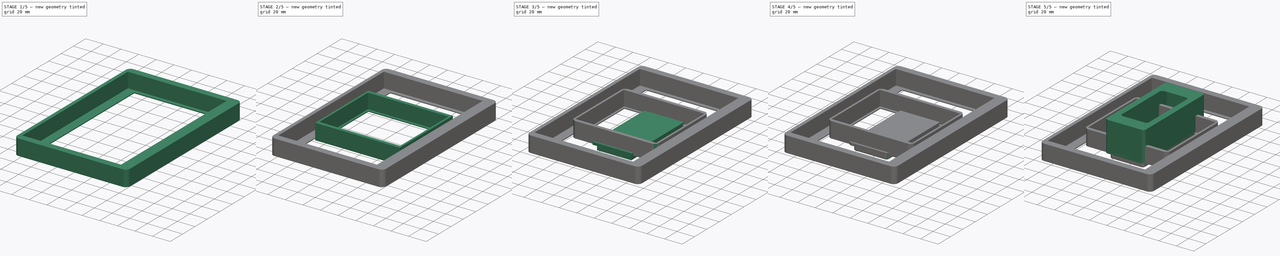
[diagram: build sequence overview — one tinted view per stage of 5, left to right]
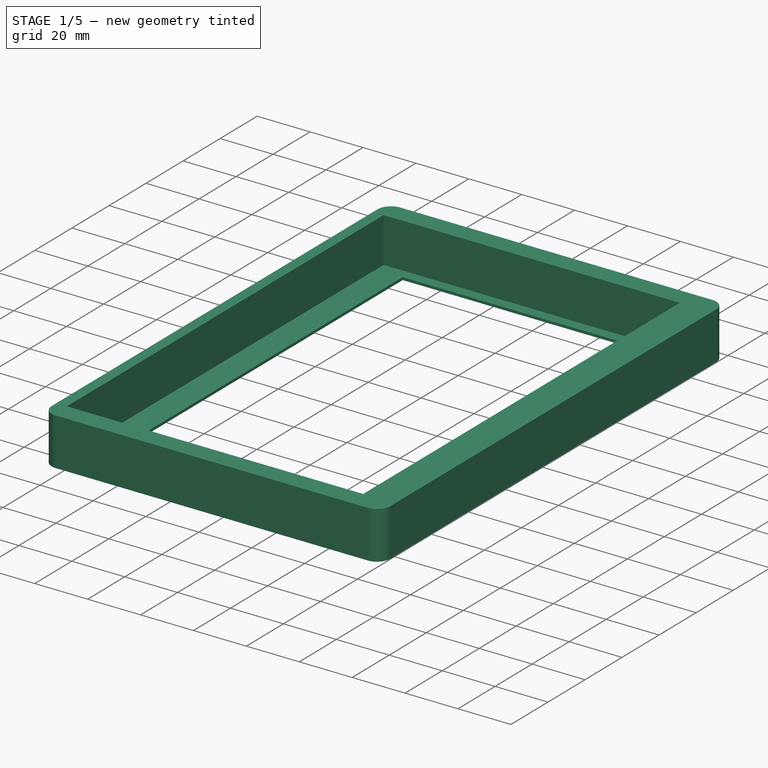
[diagram: stage 1 of 5 — iso view after this stage's code; geometry added in this stage tinted green]
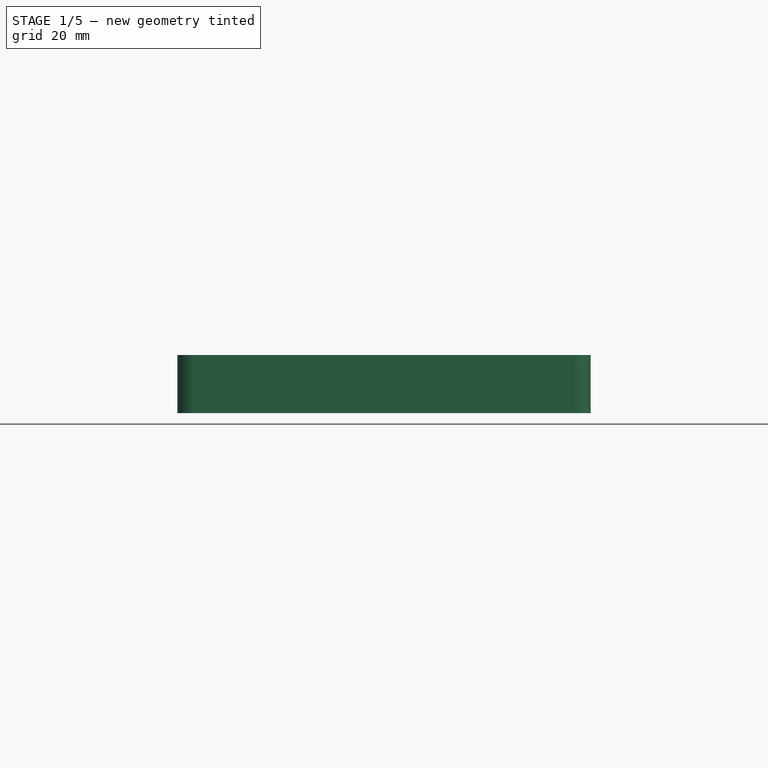
[diagram: stage 1 of 5 — front view after this stage's code; geometry added in this stage tinted green]
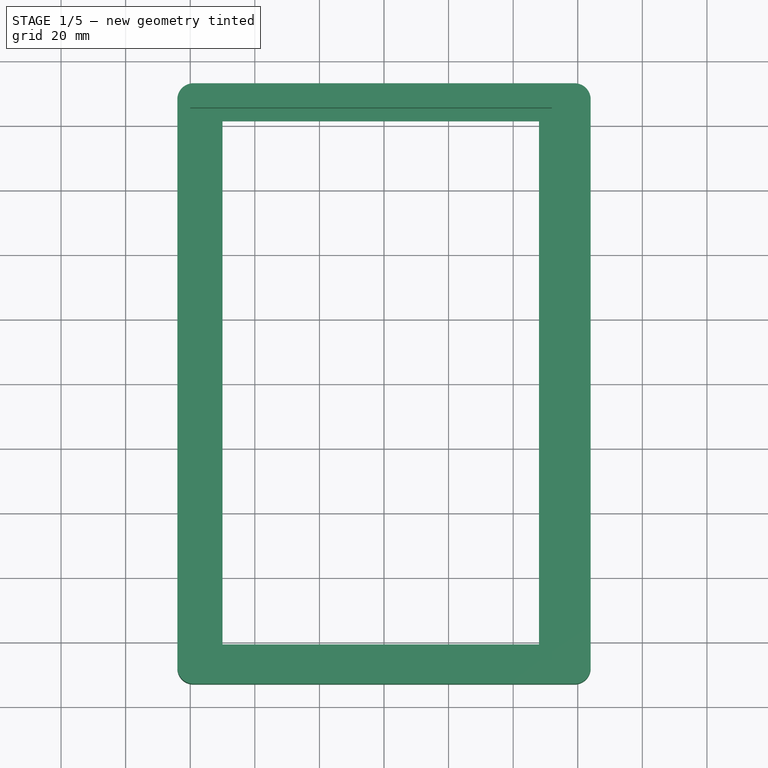
[diagram: stage 1 of 5 — top view after this stage's code; geometry added in this stage tinted green]
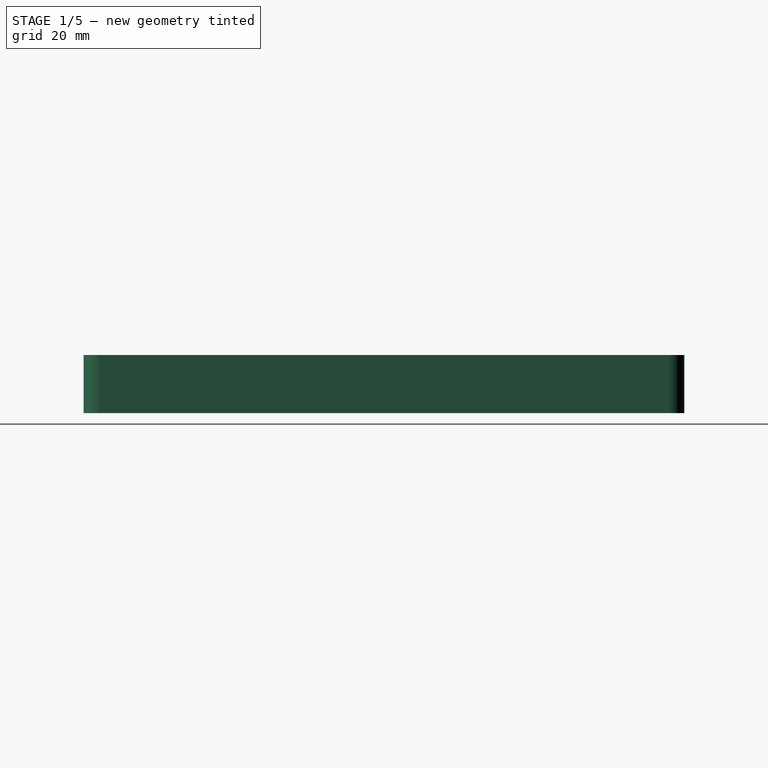
[diagram: stage 1 of 5 — right view after this stage's code; geometry added in this stage tinted green]
FCSTD DOCUMENT  (FreeCAD 0.21R33668 +26 (Git))
Label: case
License: Creative Commons Attribution
LicenseURL: http://creativecommons.org/licenses/by/4.0/
objects: Sketcher::SketchObject×12, PartDesign::Pocket×7, PartDesign::Fillet×7, PartDesign::Pad×5, PartDesign::Body×4, App::Part×1
note: 54 computed .brp shape members not serialized (recipe doc carries the construction recipe); baked Part::Feature solids carry a one-line shape summary decoded from their .brp

FEATURE [PartDesign::Body] Body002  label="screen_panel"
  Group = -> [Sketch007,Pad003,Sketch008,Pocket003,Sketch009,Pocket004,Fillet004]
  Origin = -> Origin003
  Tip = -> Fillet004
FEATURE [App::Part] Part  label="420Screeen"
  Group = -> [Body002]
  Origin = -> Origin002
FEATURE [Sketcher::SketchObject] Sketch010
  FullyConstrained = true
  MapMode = 5
  Support = -> [XY_Plane004]
  sketch-geometry (4):
    g0: LineSegment StartX=-64 StartY=93 StartZ=0 EndX=64 EndY=93 EndZ=0
    g1: LineSegment StartX=64 StartY=93 StartZ=0 EndX=64 EndY=-93 EndZ=0
    g2: LineSegment StartX=64 StartY=-93 StartZ=0 EndX=-64 EndY=-93 EndZ=0
    g3: LineSegment StartX=-64 StartY=-93 StartZ=0 EndX=-64 EndY=93 EndZ=0
  constraints (10):
    c: Coincident(g0,g1)
    c: Coincident(g1,g2)
    c: Coincident(g2,g3)
    c: Coincident(g3,g0)
    c: Horizontal(g2)
    c: Vertical(g1)
    c: DistanceX(g0,g0) = 128
    c: DistanceY(g1,g0) = 186
    c: Symmetric(g0,g0,g-2)
    c: Symmetric(g0,g2,g-1)
FEATURE [PartDesign::Pad] Pad004
  Direction = (0,0,1)
  Length = 18
  Length2 = 10
  Profile = -> Sketch010
  ReferenceAxis = -> Sketch010 [N_Axis]
  Type = 0
FEATURE [Sketcher::SketchObject] Sketch011
  ExternalGeometry = -> [Pad004]
  FullyConstrained = false
  MapMode = 5
  Placement = pos=(0,0,18) rot=(0,0,1;0rad)
  Support = -> [Pad004]
  expr: Constraints[9] = 112 / 2 + 4
  sketch-geometry (4):
    g0: LineSegment StartX=-60 StartY=85.5 StartZ=0 EndX=52 EndY=85.5 EndZ=0
    g1: LineSegment StartX=52 StartY=85.5 StartZ=0 EndX=52 EndY=-85.5 EndZ=0
    g2: LineSegment StartX=52 StartY=-85.5 StartZ=0 EndX=-60 EndY=-85.5 EndZ=0
    g3: LineSegment StartX=-60 StartY=-85.5 StartZ=0 EndX=-60 EndY=85.5 EndZ=0
  constraints (10):
    c: Coincident(g0,g1)
    c: Coincident(g1,g2)
    c: Coincident(g2,g3)
    c: Coincident(g3,g0)
    c: Horizontal(g2)
    c: Vertical(g1)
    c: DistanceX(g0,g0) = 112
    c: DistanceY(g2,g0) = 171
    c: Symmetric(g0,g2,g-1)
    c: DistanceX(g0,g-1) = 60
FEATURE [PartDesign::Pocket] Pocket005
  BaseFeature = -> Pad004
  Direction = (0,0,-1)
  Length = 17
  Length2 = 5
  Profile = -> Sketch011
  ReferenceAxis = -> Sketch011 [N_Axis]
  Type = 0
FEATURE [Sketcher::SketchObject] Sketch012
  ExternalGeometry = -> [Pocket005]
  FullyConstrained = false
  MapMode = 5
  Placement = pos=(0,0,1) rot=(0,0,1;0rad)
  Support = -> [Pocket005]
  sketch-geometry (4):
    g0: LineSegment StartX=-50 StartY=81.5 StartZ=0 EndX=48 EndY=81.5 EndZ=0
    g1: LineSegment StartX=48 StartY=81.5 StartZ=0 EndX=48 EndY=-80.5 EndZ=0
    g2: LineSegment StartX=48 StartY=-80.5 StartZ=0 EndX=-50 EndY=-80.5 EndZ=0
    g3: LineSegment StartX=-50 StartY=-80.5 StartZ=0 EndX=-50 EndY=81.5 EndZ=0
  constraints (11):
    c: Coincident(g0,g1)
    c: Coincident(g1,g2)
    c: Coincident(g2,g3)
    c: Coincident(g3,g0)
    c: Horizontal(g2)
    c: Vertical(g1)
    c: Vertical(g3)
    c: DistanceX(g0,g0) = 98
    c: DistanceY(g2,g0) = 162
    c: DistanceY(g0,g-4) = 4
    c: DistanceX(g-5,g0) = 10
FEATURE [PartDesign::Pocket] Pocket006
  BaseFeature = -> Pocket005
  Direction = (0,0,-1)
  Length = 5
  Length2 = 5
  Profile = -> Sketch012
  ReferenceAxis = -> Sketch012 [N_Axis]
  Type = 1
FEATURE [PartDesign::Fillet] Fillet005
  Base = -> Pocket006 [Edge5,Edge1,Edge2,Edge8]
  BaseFeature = -> Pocket006
  Radius = 5
  SupportTransform = false
  UseAllEdges = false
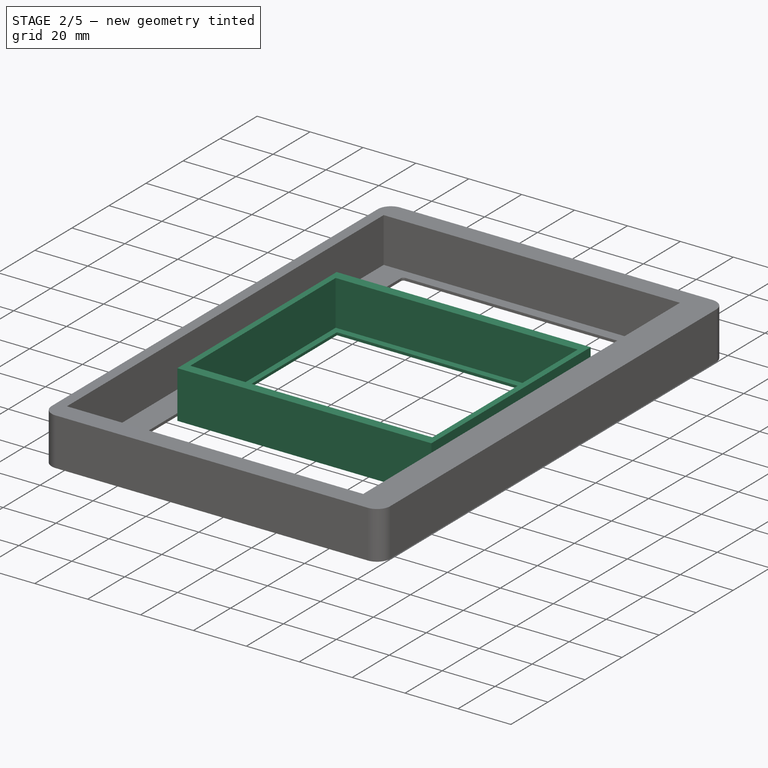
[diagram: stage 2 of 5 — iso view after this stage's code; geometry added in this stage tinted green]
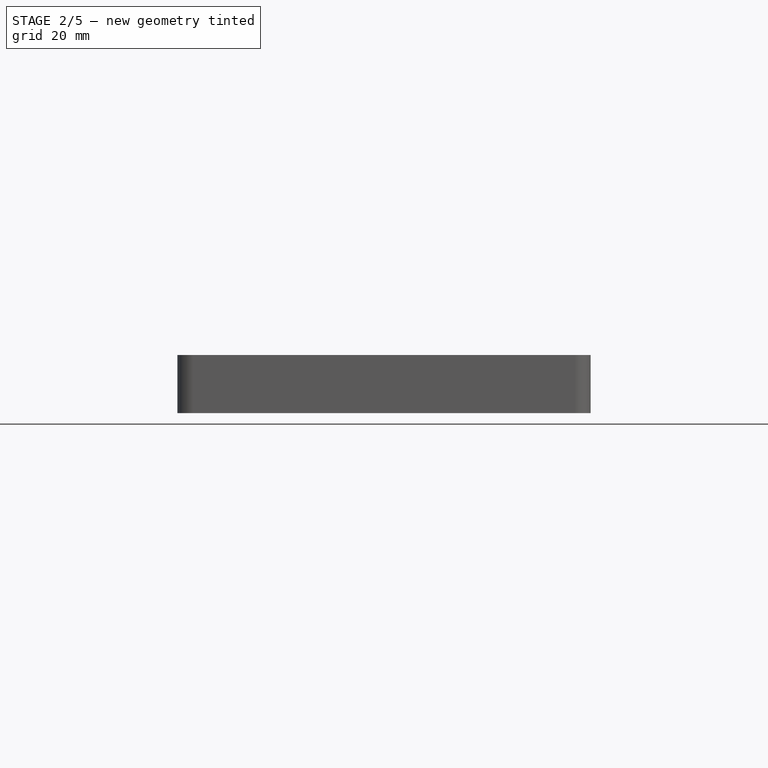
[diagram: stage 2 of 5 — front view after this stage's code; geometry added in this stage tinted green]
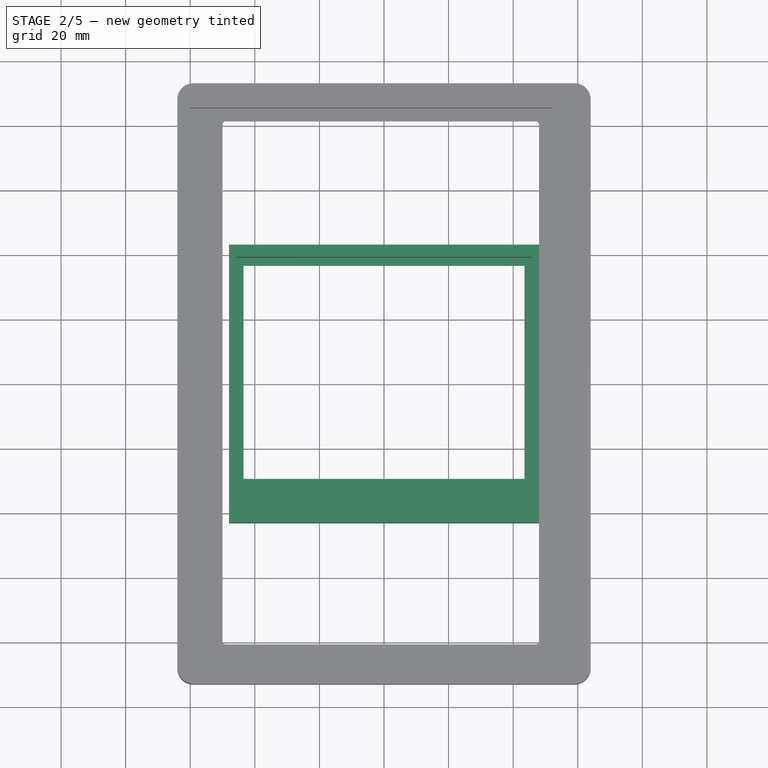
[diagram: stage 2 of 5 — top view after this stage's code; geometry added in this stage tinted green]
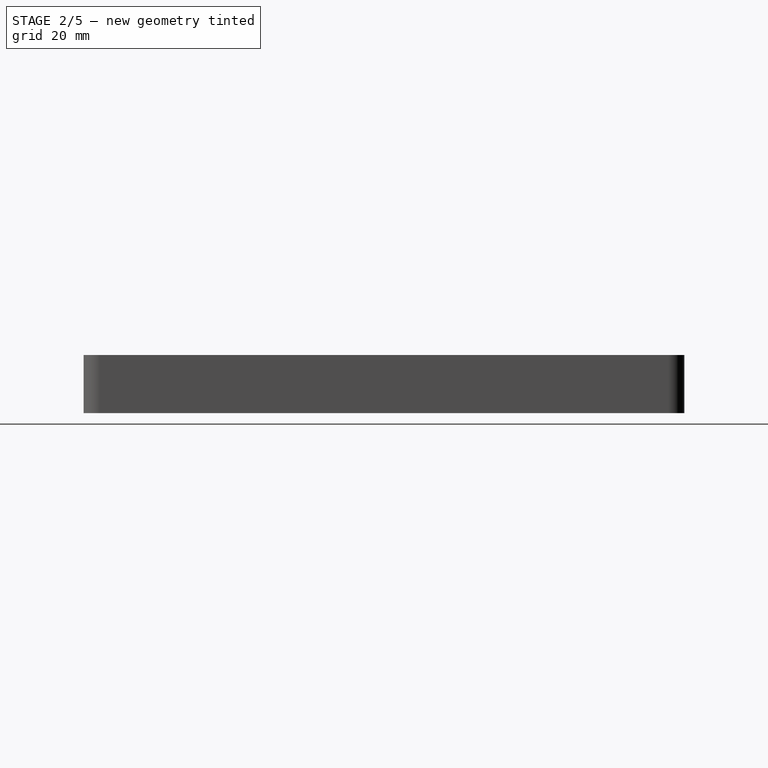
[diagram: stage 2 of 5 — right view after this stage's code; geometry added in this stage tinted green]
FEATURE [PartDesign::Body] Body001  label="Lid"
  Group = -> [Sketch003,Pad001,Sketch005,Pad002,Fillet001,Sketch006,Pocket002,Fillet002,Fillet003]
  Origin = -> Origin001
  Tip = -> Fillet003
FEATURE [Sketcher::SketchObject] Sketch007
  FullyConstrained = true
  MapMode = 5
  Support = -> [XY_Plane003]
  sketch-geometry (4):
    g0: LineSegment StartX=-48 StartY=43 StartZ=0 EndX=48 EndY=43 EndZ=0
    g1: LineSegment StartX=48 StartY=43 StartZ=0 EndX=48 EndY=-43 EndZ=0
    g2: LineSegment StartX=48 StartY=-43 StartZ=0 EndX=-48 EndY=-43 EndZ=0
    g3: LineSegment StartX=-48 StartY=-43 StartZ=0 EndX=-48 EndY=43 EndZ=0
  constraints (10):
    c: Coincident(g0,g1)
    c: Coincident(g1,g2)
    c: Coincident(g2,g3)
    c: Coincident(g3,g0)
    c: Horizontal(g2)
    c: Vertical(g1)
    c: DistanceX(g0,g0) = 96
    c: DistanceY(g1,g0) = 86
    c: Symmetric(g0,g0,g-2)
    c: Symmetric(g0,g2,g-1)
FEATURE [PartDesign::Pad] Pad003
  Direction = (0,0,1)
  Length = 18
  Length2 = 10
  Profile = -> Sketch007
  ReferenceAxis = -> Sketch007 [N_Axis]
  Type = 0
FEATURE [Sketcher::SketchObject] Sketch008
  FullyConstrained = true
  MapMode = 5
  Placement = pos=(0,0,18) rot=(0,0,1;0rad)
  Support = -> [Pad003]
  sketch-geometry (4):
    g0: LineSegment StartX=-45.75 StartY=39.25 StartZ=0 EndX=45.75 EndY=39.25 EndZ=0
    g1: LineSegment StartX=45.75 StartY=39.25 StartZ=0 EndX=45.75 EndY=-39.25 EndZ=0
    g2: LineSegment StartX=45.75 StartY=-39.25 StartZ=0 EndX=-45.75 EndY=-39.25 EndZ=0
    g3: LineSegment StartX=-45.75 StartY=-39.25 StartZ=0 EndX=-45.75 EndY=39.25 EndZ=0
  constraints (10):
    c: Coincident(g0,g1)
    c: Coincident(g1,g2)
    c: Coincident(g2,g3)
    c: Coincident(g3,g0)
    c: Horizontal(g2)
    c: Vertical(g1)
    c: DistanceX(g0,g0) = 91.5
    c: DistanceY(g2,g0) = 78.5
    c: Symmetric(g0,g0,g-2)
    c: Symmetric(g0,g2,g-1)
FEATURE [PartDesign::Pocket] Pocket003
  BaseFeature = -> Pad003
  Direction = (0,0,-1)
  Length = 17
  Length2 = 5
  Profile = -> Sketch008
  ReferenceAxis = -> Sketch008 [N_Axis]
  Type = 0
FEATURE [Sketcher::SketchObject] Sketch009
  ExternalGeometry = -> [Pocket003]
  FullyConstrained = true
  MapMode = 5
  Placement = pos=(0,0,1) rot=(0,0,1;0rad)
  Support = -> [Pocket003]
  sketch-geometry (4):
    g0: LineSegment StartX=-43.5 StartY=36.75 StartZ=0 EndX=43.5 EndY=36.75 EndZ=0
    g1: LineSegment StartX=43.5 StartY=36.75 StartZ=0 EndX=43.5 EndY=-29.25 EndZ=0
    g2: LineSegment StartX=43.5 StartY=-29.25 StartZ=0 EndX=-43.5 EndY=-29.25 EndZ=0
    g3: LineSegment StartX=-43.5 StartY=-29.25 StartZ=0 EndX=-43.5 EndY=36.75 EndZ=0
  constraints (11):
    c: Coincident(g0,g1)
    c: Coincident(g1,g2)
    c: Coincident(g2,g3)
    c: Coincident(g3,g0)
    c: Horizontal(g2)
    c: Vertical(g1)
    c: Vertical(g3)
    c: DistanceX(g0,g0) = 87
    c: DistanceY(g2,g0) = 66
    c: Symmetric(g0,g0,g-2)
    c: DistanceY(g0,g-4) = 2.5
FEATURE [PartDesign::Pocket] Pocket004
  BaseFeature = -> Pocket003
  Direction = (0,0,-1)
  Length = 5
  Length2 = 5
  Profile = -> Sketch009
  ReferenceAxis = -> Sketch009 [N_Axis]
  Type = 1
FEATURE [PartDesign::Fillet] Fillet006
  Base = -> Fillet005 [Edge35,Edge37,Edge39,Edge34]
  BaseFeature = -> Fillet005
  Radius = 1
  SupportTransform = false
  UseAllEdges = false
FEATURE [PartDesign::Body] Body003  label="screen_panel_7_5"
  Group = -> [Sketch010,Pad004,Sketch011,Pocket005,Sketch012,Pocket006,Fillet005,Fillet006]
  Origin = -> Origin004
  Tip = -> Fillet006
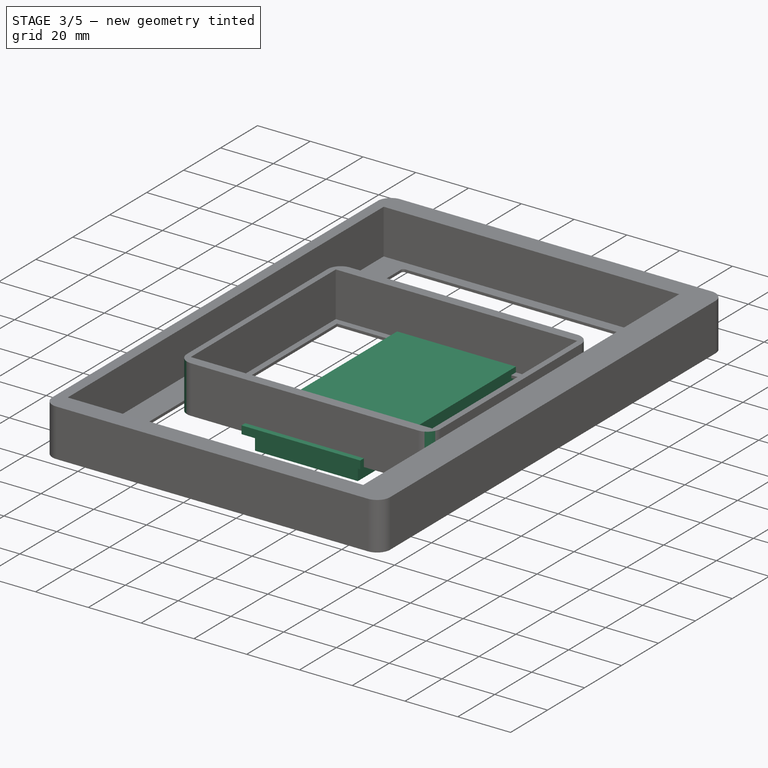
[diagram: stage 3 of 5 — iso view after this stage's code; geometry added in this stage tinted green]
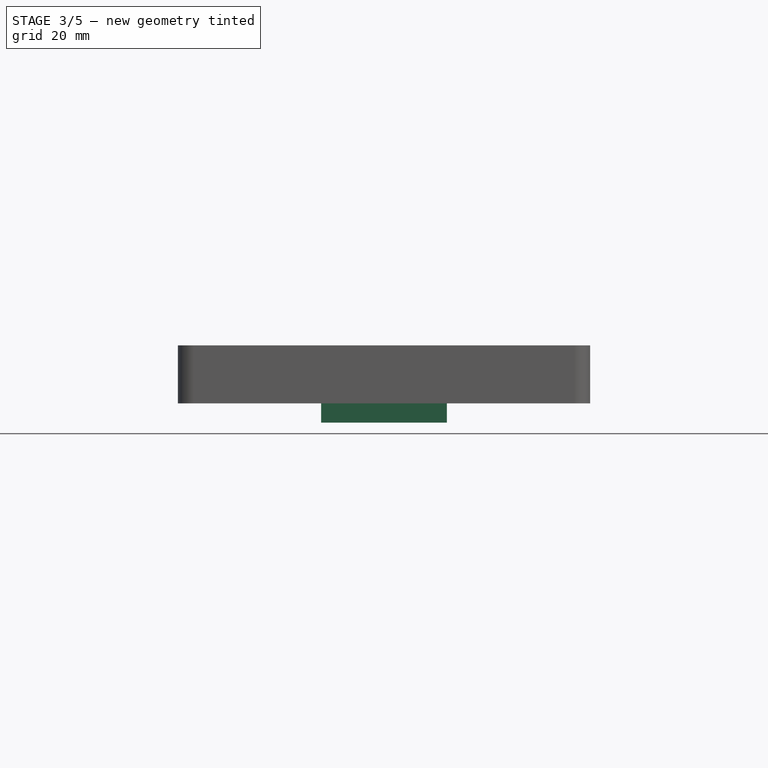
[diagram: stage 3 of 5 — front view after this stage's code; geometry added in this stage tinted green]
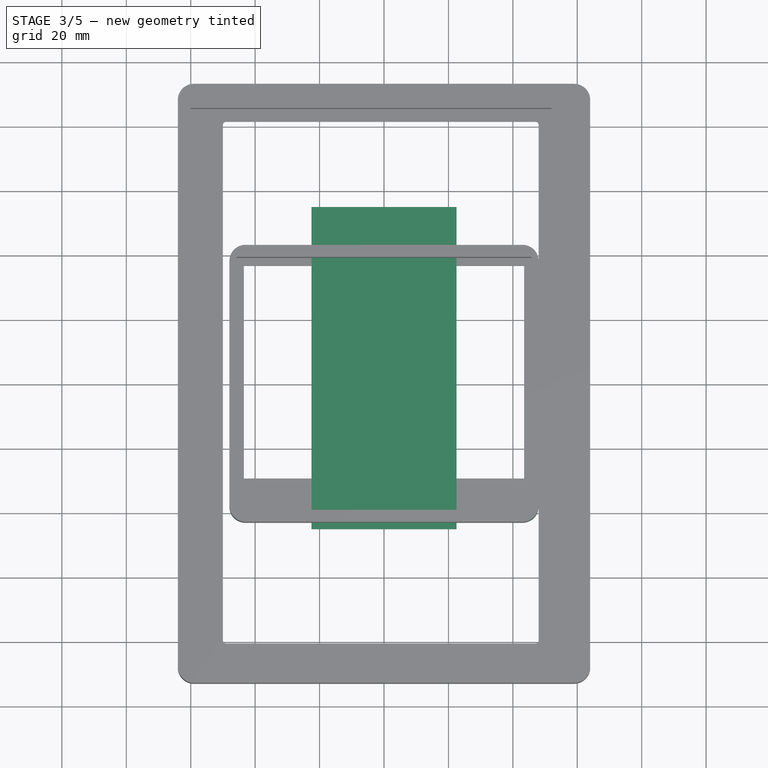
[diagram: stage 3 of 5 — top view after this stage's code; geometry added in this stage tinted green]
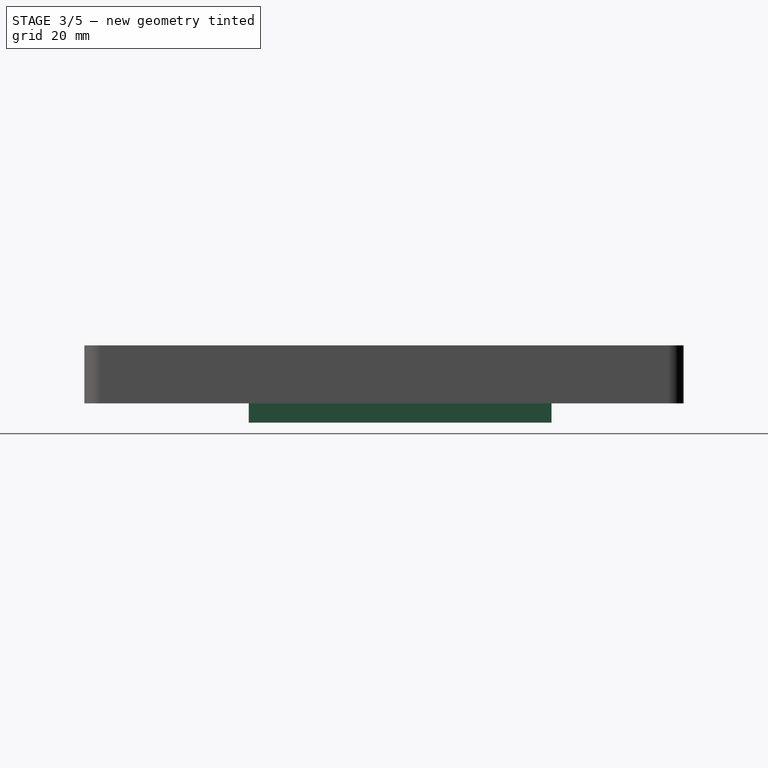
[diagram: stage 3 of 5 — right view after this stage's code; geometry added in this stage tinted green]
FEATURE [PartDesign::Body] Body
  Group = -> [Sketch,Pad,Sketch001,Pocket,Sketch002,Pocket001,Fillet]
  Origin = -> Origin
  Tip = -> Fillet
FEATURE [Sketcher::SketchObject] Sketch003
  FullyConstrained = false
  MapMode = 5
  Support = -> [XY_Plane001]
  sketch-geometry (4):
    g0: LineSegment StartX=-22.5 StartY=55 StartZ=0 EndX=22.5 EndY=55 EndZ=0
    g1: LineSegment StartX=22.5 StartY=55 StartZ=0 EndX=22.5 EndY=-45 EndZ=0
    g2: LineSegment StartX=22.5 StartY=-45 StartZ=0 EndX=-22.5 EndY=-45 EndZ=0
    g3: LineSegment StartX=-22.5 StartY=-45 StartZ=0 EndX=-22.5 EndY=55 EndZ=0
  constraints (10):
    c: Coincident(g0,g1)
    c: Coincident(g1,g2)
    c: Coincident(g2,g3)
    c: Coincident(g3,g0)
    c: Horizontal(g2)
    c: Vertical(g1)
    c: DistanceY(g2,g0) = 100
    c: DistanceX(g0,g0) = 45
    c: Symmetric(g0,g0,g-2)
    c: DistanceY(g-1,g0) = 55
FEATURE [PartDesign::Pad] Pad001
  Direction = (0,0,1)
  Length = 3
  Length2 = 10
  Profile = -> Sketch003
  ReferenceAxis = -> Sketch003 [N_Axis]
  Type = 0
FEATURE [Sketcher::SketchObject] Sketch005
  FullyConstrained = false
  MapMode = 5
  Placement = pos=(0,0,0) rot=(1,0,0;3.14159rad)
  Support = -> [Pad001]
  sketch-geometry (4):
    g0: LineSegment StartX=-19.5 StartY=42 StartZ=0 EndX=19.5 EndY=42 EndZ=0
    g1: LineSegment StartX=19.5 StartY=42 StartZ=0 EndX=19.5 EndY=-52 EndZ=0
    g2: LineSegment StartX=19.5 StartY=-52 StartZ=0 EndX=-19.5 EndY=-52 EndZ=0
    g3: LineSegment StartX=-19.5 StartY=-52 StartZ=0 EndX=-19.5 EndY=42 EndZ=0
  constraints (10):
    c: Coincident(g0,g1)
    c: Coincident(g1,g2)
    c: Coincident(g2,g3)
    c: Coincident(g3,g0)
    c: Horizontal(g2)
    c: Vertical(g1)
    c: DistanceX(g0,g0) = 39
    c: Symmetric(g0,g0,g-2)
    c: DistanceY(g2,g0) = 94
    c: DistanceY(g2,g-1) = 52
FEATURE [PartDesign::Pad] Pad002
  BaseFeature = -> Pad001
  Direction = (0,0,-1)
  Length = 6
  Length2 = 10
  Profile = -> Sketch005
  ReferenceAxis = -> Sketch005 [N_Axis]
  Type = 0
FEATURE [PartDesign::Fillet] Fillet004
  Base = -> Pocket004 [Edge5,Edge1,Edge2,Edge8]
  BaseFeature = -> Pocket004
  Radius = 5
  SupportTransform = false
  UseAllEdges = false
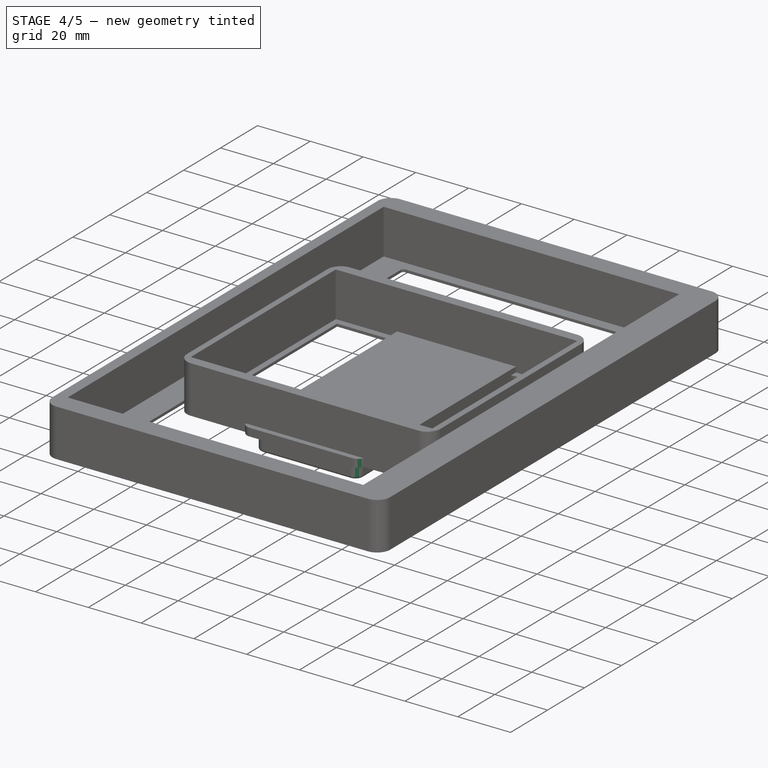
[diagram: stage 4 of 5 — iso view after this stage's code; geometry added in this stage tinted green]
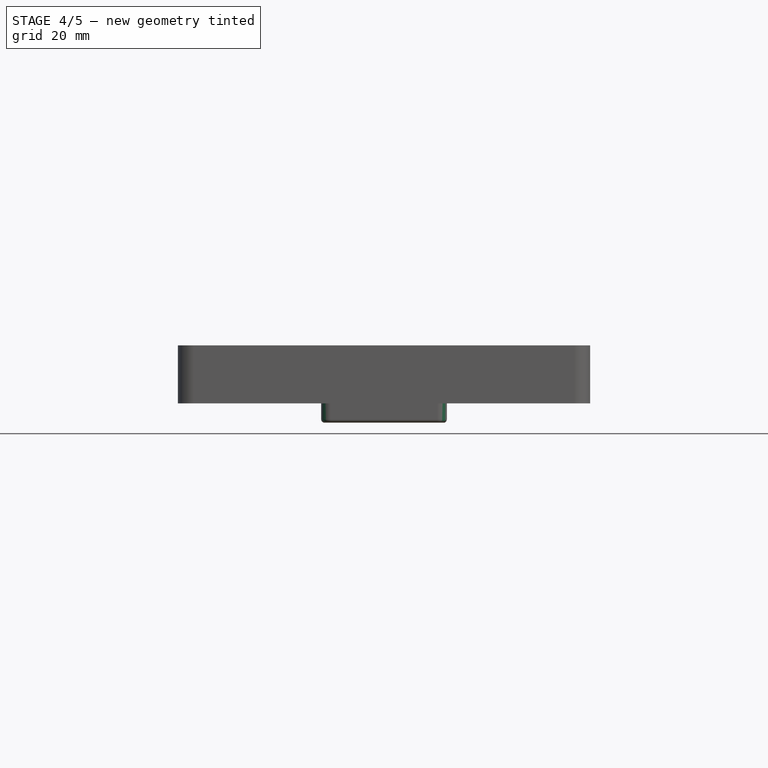
[diagram: stage 4 of 5 — front view after this stage's code; geometry added in this stage tinted green]
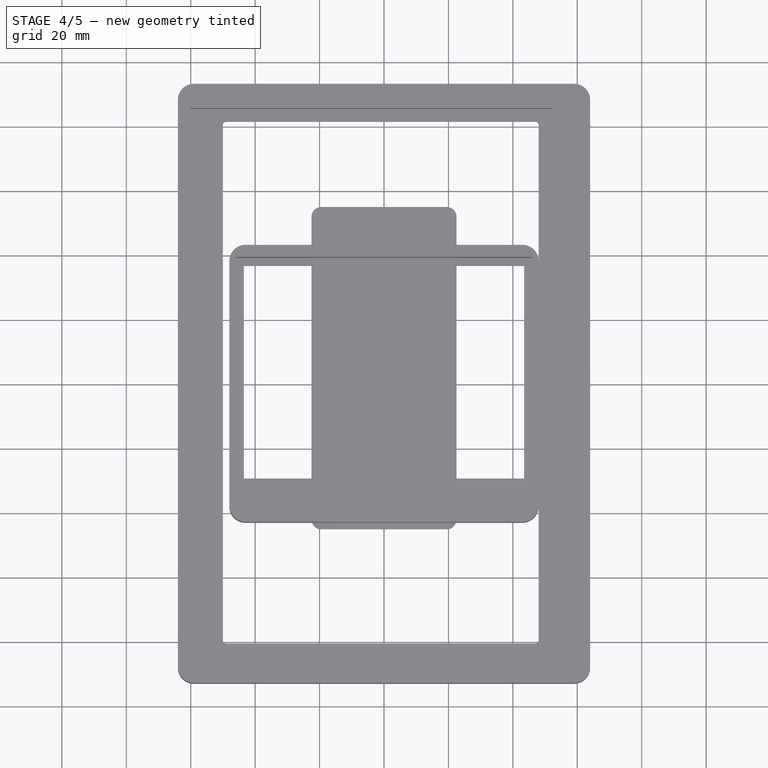
[diagram: stage 4 of 5 — top view after this stage's code; geometry added in this stage tinted green]
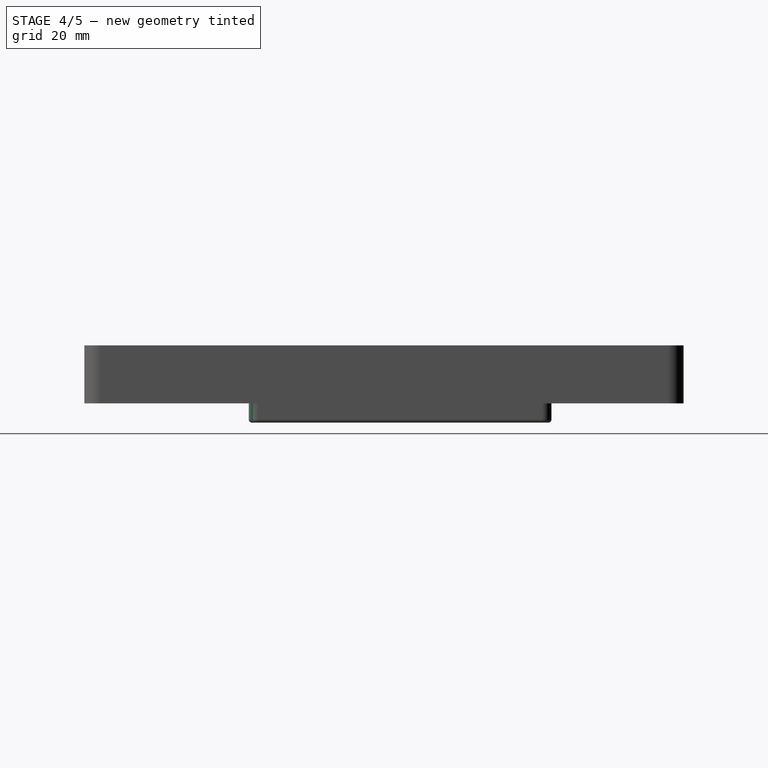
[diagram: stage 4 of 5 — right view after this stage's code; geometry added in this stage tinted green]
FEATURE [PartDesign::Fillet] Fillet001
  Base = -> Pad002 [Edge8,Edge18,Edge2,Edge20,Edge5,Edge17,Edge1,Edge22]
  BaseFeature = -> Pad002
  Radius = 3
  SupportTransform = false
  UseAllEdges = false
FEATURE [Sketcher::SketchObject] Sketch006
  ExternalGeometry = -> [Fillet001]
  FullyConstrained = true
  MapMode = 5
  Placement = pos=(0,0,-6) rot=(1,0,0;3.14159rad)
  Support = -> [Fillet001]
  sketch-geometry (4):
    g0: LineSegment StartX=-16.5 StartY=39 StartZ=0 EndX=16.5 EndY=39 EndZ=0
    g1: LineSegment StartX=16.5 StartY=39 StartZ=0 EndX=16.5 EndY=-49 EndZ=0
    g2: LineSegment StartX=16.5 StartY=-49 StartZ=0 EndX=-16.5 EndY=-49 EndZ=0
    g3: LineSegment StartX=-16.5 StartY=-49 StartZ=0 EndX=-16.5 EndY=39 EndZ=0
  constraints (12):
    c: Coincident(g0,g1)
    c: Coincident(g1,g2)
    c: Coincident(g2,g3)
    c: Coincident(g3,g0)
    c: Horizontal(g0)
    c: Horizontal(g2)
    c: Vertical(g1)
    c: Vertical(g3)
    c: Horizontal(g2,g-4)
    c: Vertical(g2,g-7)
    c: Horizontal(g0,g-6)
    c: Vertical(g0,g-6)
FEATURE [PartDesign::Pocket] Pocket002
  BaseFeature = -> Fillet001
  Direction = (0,0,1)
  Length = 6
  Length2 = 5
  Profile = -> Sketch006
  ReferenceAxis = -> Sketch006 [N_Axis]
  Type = 0
FEATURE [PartDesign::Fillet] Fillet002
  Base = -> Pocket002 [Edge56,Edge58,Edge53,Edge54]
  BaseFeature = -> Pocket002
  Radius = 2
  SupportTransform = false
  UseAllEdges = false
FEATURE [PartDesign::Fillet] Fillet003
  Base = -> Fillet002 [Face18,Face1]
  BaseFeature = -> Fillet002
  Radius = 1
  SupportTransform = false
  UseAllEdges = false
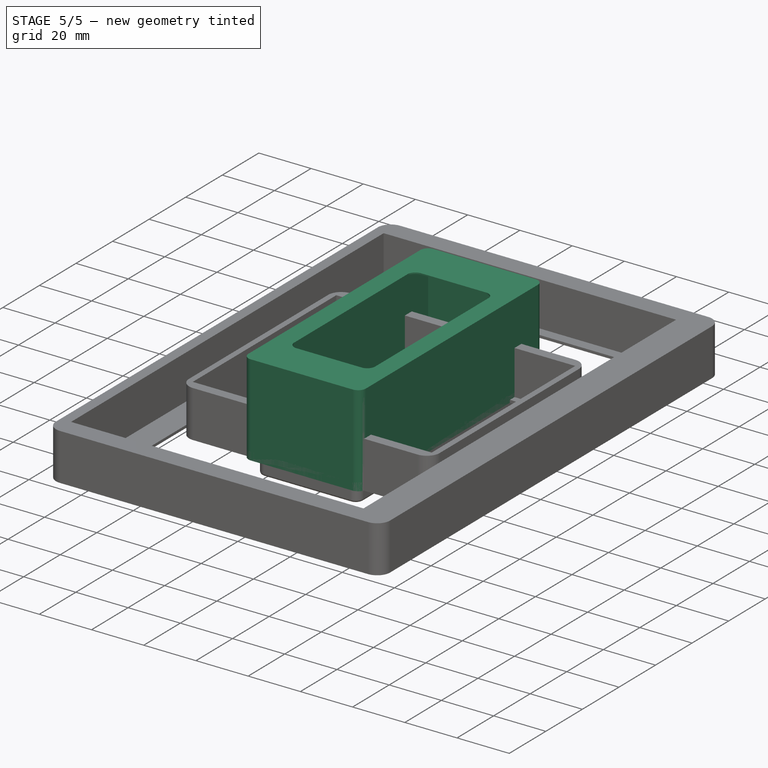
[diagram: stage 5 of 5 — iso view after this stage's code; geometry added in this stage tinted green]
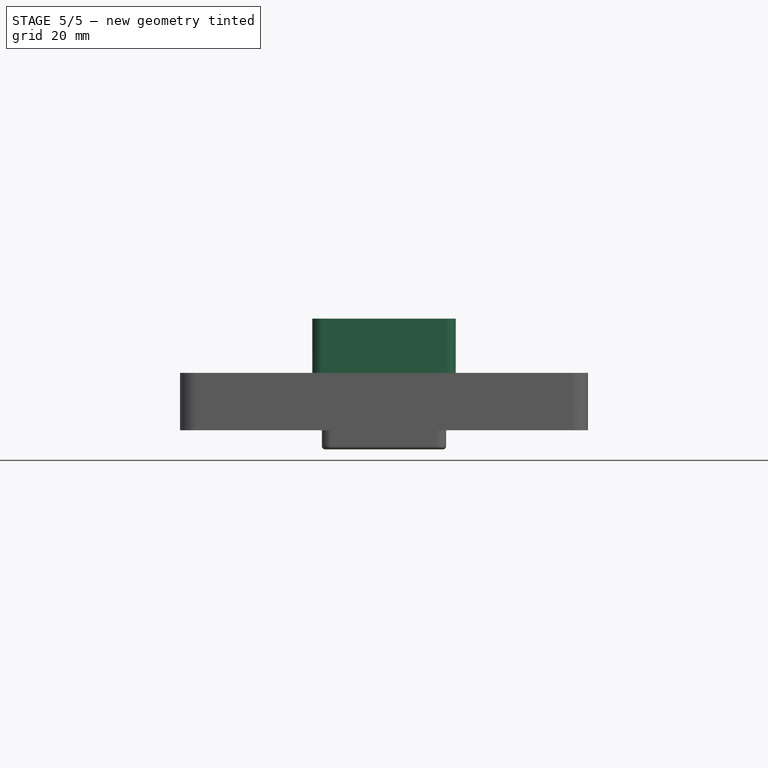
[diagram: stage 5 of 5 — front view after this stage's code; geometry added in this stage tinted green]
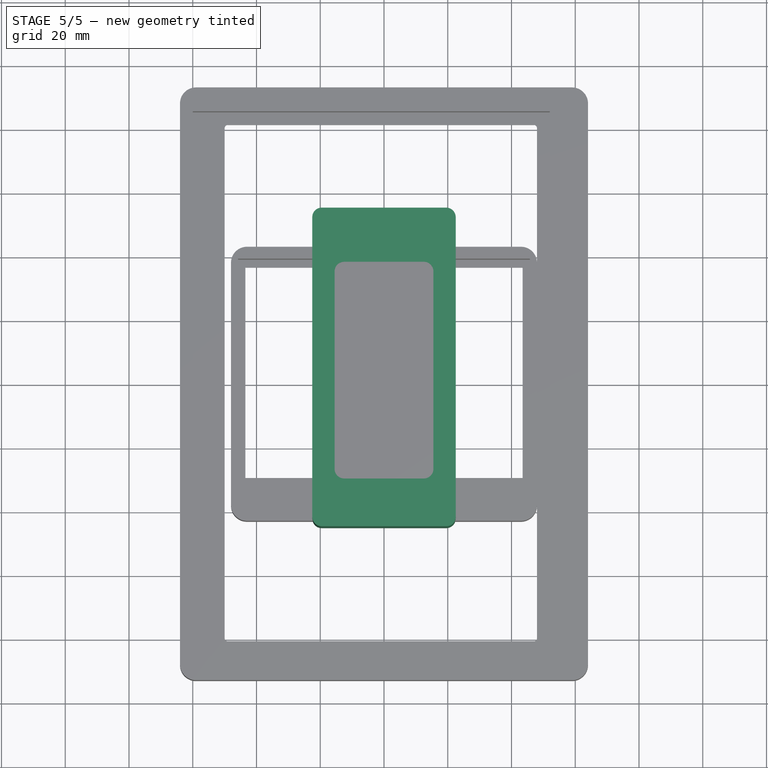
[diagram: stage 5 of 5 — top view after this stage's code; geometry added in this stage tinted green]
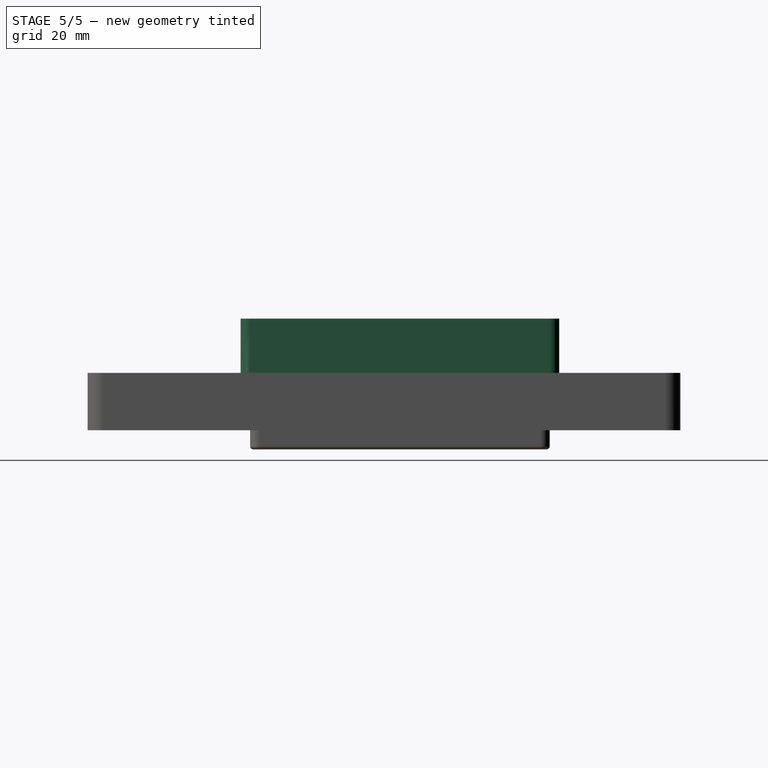
[diagram: stage 5 of 5 — right view after this stage's code; geometry added in this stage tinted green]
FEATURE [Sketcher::SketchObject] Sketch
  FullyConstrained = false
  MapMode = 5
  Support = -> [XY_Plane]
  sketch-geometry (4):
    g0: LineSegment StartX=-22.5 StartY=55 StartZ=0 EndX=22.5 EndY=55 EndZ=0
    g1: LineSegment StartX=22.5 StartY=55 StartZ=0 EndX=22.5 EndY=-45 EndZ=0
    g2: LineSegment StartX=22.5 StartY=-45 StartZ=0 EndX=-22.5 EndY=-45 EndZ=0
    g3: LineSegment StartX=-22.5 StartY=-45 StartZ=0 EndX=-22.5 EndY=55 EndZ=0
  constraints (10):
    c: Coincident(g0,g1)
    c: Coincident(g1,g2)
    c: Coincident(g2,g3)
    c: Coincident(g3,g0)
    c: Horizontal(g2)
    c: Vertical(g1)
    c: DistanceY(g2,g0) = 100
    c: DistanceX(g0,g0) = 45
    c: Symmetric(g0,g0,g-2)
    c: DistanceY(g-1,g0) = 55
FEATURE [PartDesign::Pad] Pad
  Direction = (0,0,1)
  Length = 35
  Length2 = 10
  Profile = -> Sketch
  ReferenceAxis = -> Sketch [N_Axis]
  Type = 0
FEATURE [Sketcher::SketchObject] Sketch001
  ExternalGeometry = -> [Pad]
  FullyConstrained = false
  MapMode = 5
  Placement = pos=(0,0,35) rot=(0,0,1;0rad)
  Support = -> [Pad]
  sketch-geometry (4):
    g0: LineSegment StartX=-15.5 StartY=38 StartZ=0 EndX=15.5 EndY=38 EndZ=0
    g1: LineSegment StartX=15.5 StartY=38 StartZ=0 EndX=15.5 EndY=-30 EndZ=0
    g2: LineSegment StartX=15.5 StartY=-30 StartZ=0 EndX=-15.5 EndY=-30 EndZ=0
    g3: LineSegment StartX=-15.5 StartY=-30 StartZ=0 EndX=-15.5 EndY=38 EndZ=0
  constraints (10):
    c: Coincident(g0,g1)
    c: Coincident(g1,g2)
    c: Coincident(g2,g3)
    c: Coincident(g3,g0)
    c: Horizontal(g2)
    c: Vertical(g1)
    c: Symmetric(g0,g0,g-2)
    c: DistanceX(g0,g0) = 31
    c: DistanceY(g2,g0) = 68
    c: DistanceY(g-4,g2) = 15
FEATURE [PartDesign::Pocket] Pocket
  BaseFeature = -> Pad
  Direction = (0,0,-1)
  Length = 5
  Length2 = 5
  Profile = -> Sketch001
  ReferenceAxis = -> Sketch001 [N_Axis]
  Type = 1
FEATURE [Sketcher::SketchObject] Sketch002
  FullyConstrained = false
  MapMode = 5
  Placement = pos=(0,0,0) rot=(1,0,0;3.14159rad)
  Support = -> [Pocket]
  sketch-geometry (4):
    g0: LineSegment StartX=-19.5 StartY=42 StartZ=0 EndX=19.5 EndY=42 EndZ=0
    g1: LineSegment StartX=19.5 StartY=42 StartZ=0 EndX=19.5 EndY=-52 EndZ=0
    g2: LineSegment StartX=19.5 StartY=-52 StartZ=0 EndX=-19.5 EndY=-52 EndZ=0
    g3: LineSegment StartX=-19.5 StartY=-52 StartZ=0 EndX=-19.5 EndY=42 EndZ=0
  constraints (10):
    c: Coincident(g0,g1)
    c: Coincident(g1,g2)
    c: Coincident(g2,g3)
    c: Coincident(g3,g0)
    c: Horizontal(g2)
    c: Vertical(g1)
    c: DistanceX(g0,g0) = 39
    c: Symmetric(g0,g0,g-2)
    c: DistanceY(g2,g0) = 94
    c: DistanceY(g2,g-1) = 52
FEATURE [PartDesign::Pocket] Pocket001
  BaseFeature = -> Pocket
  Direction = (0,0,1)
  Length = 34.5
  Length2 = 5
  Profile = -> Sketch002
  ReferenceAxis = -> Sketch002 [N_Axis]
  Type = 0
FEATURE [PartDesign::Fillet] Fillet
  Base = -> Pocket001 [Edge35,Edge33,Edge31,Edge29,Edge2,Edge8,Edge5,Edge1]
  BaseFeature = -> Pocket001
  Radius = 3
  SupportTransform = false
  UseAllEdges = false
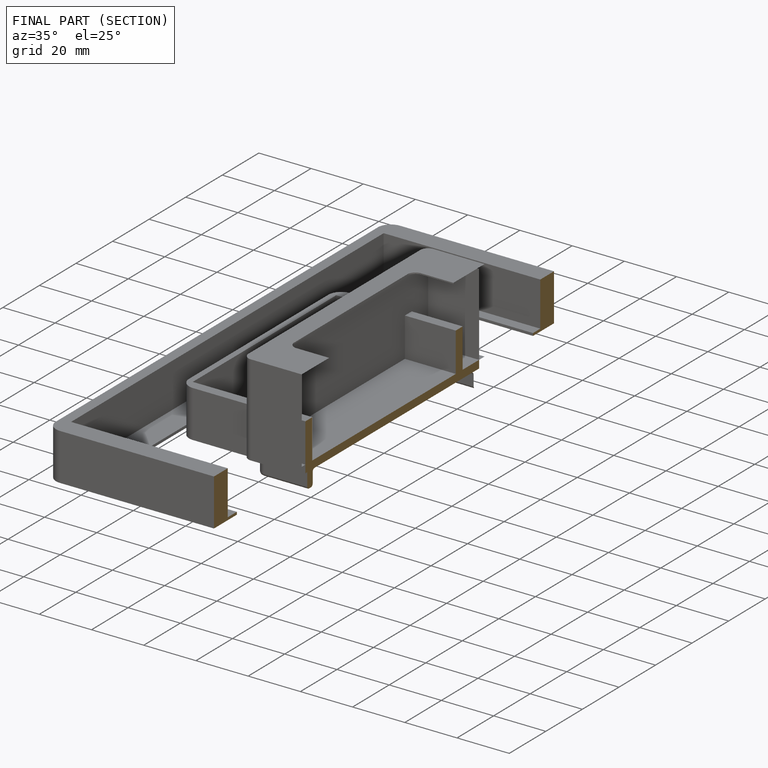
[diagram: finished part — half-section view (interior)]
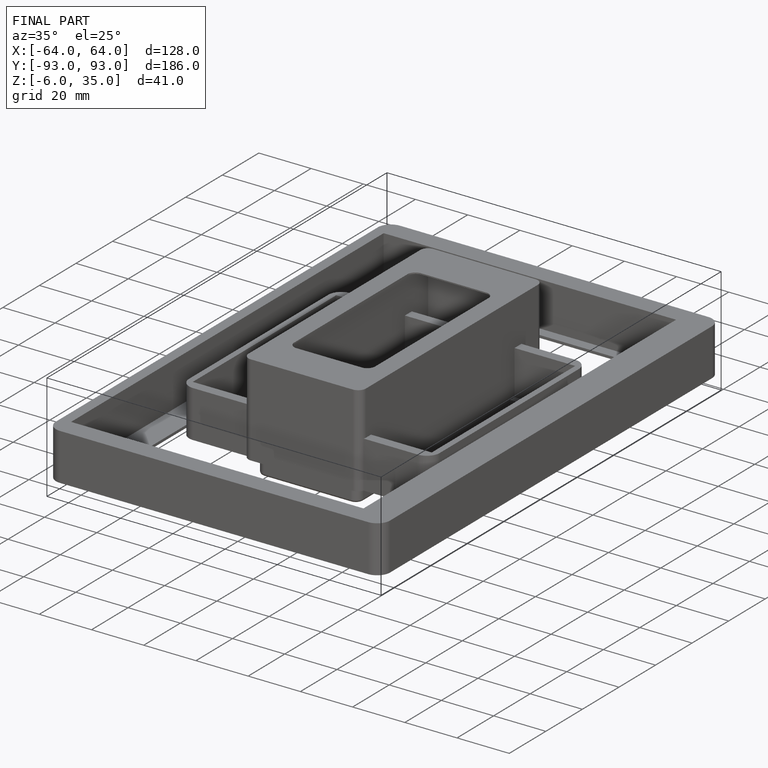
[diagram: finished part — iso view with bounding-box wireframe]
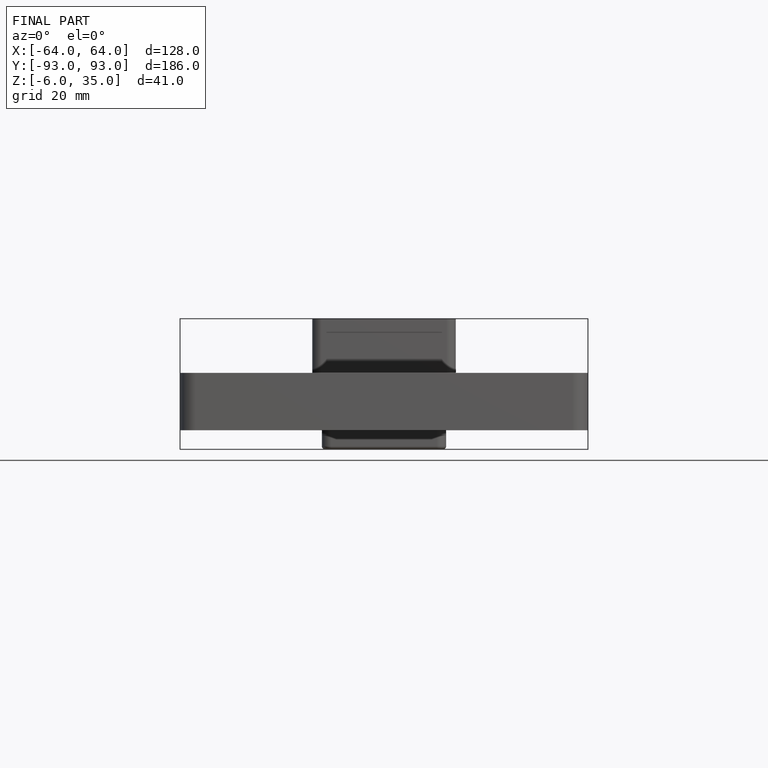
[diagram: finished part — front view with bounding-box wireframe]
